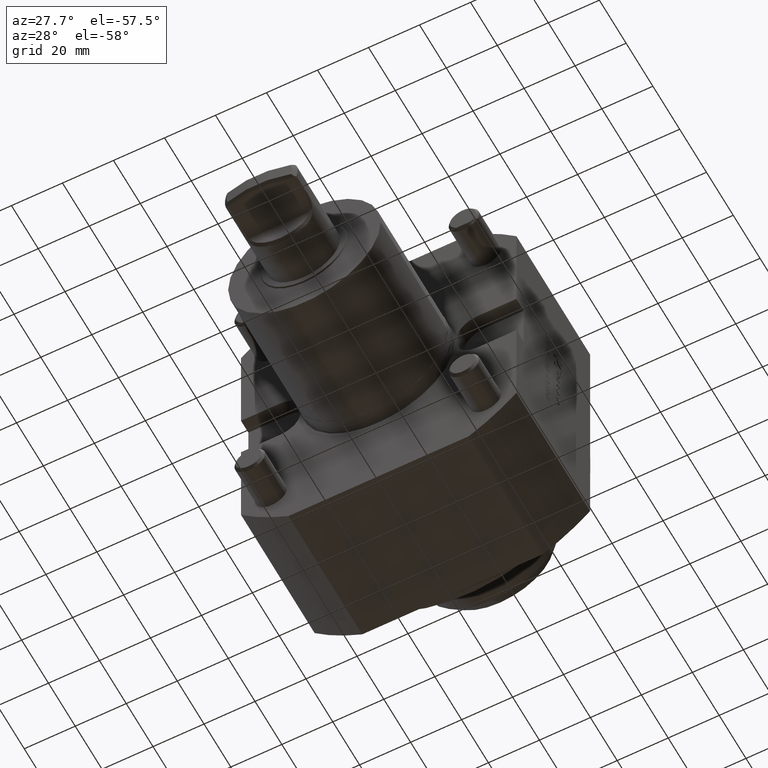
[diagram: clean part render]
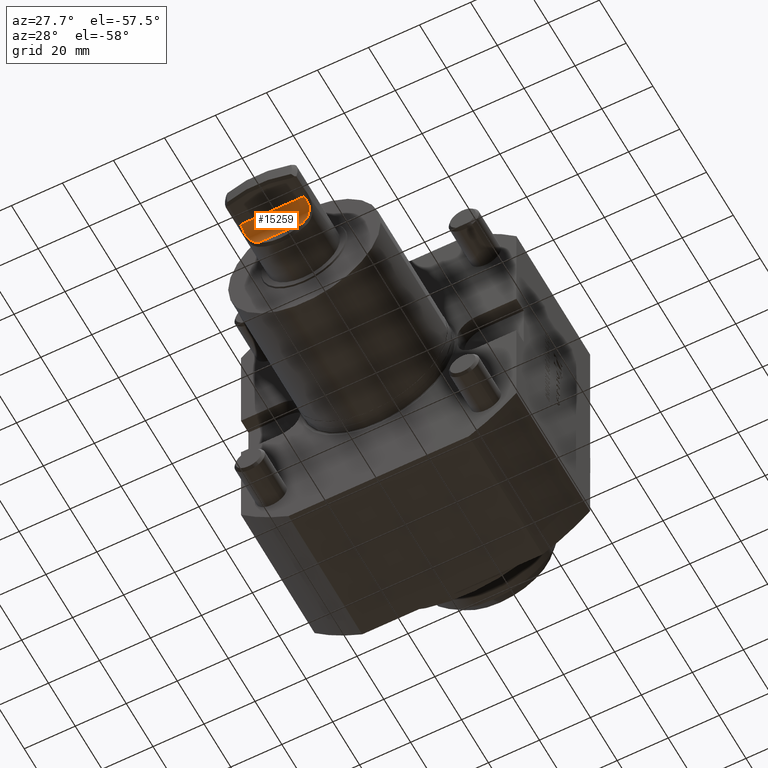
[diagram: same view with one face highlighted and labeled with its STEP entity id]
A machine part, auxiliary view. The second image highlights one B-rep face of the part: STEP entity #15259.
In plain terms, the highlighted cylindrical surface (edge-blend (fillet) strip) has radius 6 mm, axis along (-1, 0, -0).
Its self-contained STEP definition (entity closure, byte-faithful):
#517 = CARTESIAN_POINT ( 'NONE',  ( 10.96966452293996319, -73.88732766394498697, -7.794977636404262888 ) ) ;
#619 = CARTESIAN_POINT ( 'NONE',  ( 9.735458662332453272, -73.53498407962840133, -9.143631829616902351 ) ) ;
#950 = ORIENTED_EDGE ( 'NONE', *, *, #16988, .T. ) ;
#1454 = VERTEX_POINT ( 'NONE', #14440 ) ;
#1478 = DIRECTION ( 'NONE',  ( -1.000000000000000000, 1.223592022496380568E-16, -2.602085213965209409E-17 ) ) ;
#1521 =( BOUNDED_CURVE ( )  B_SPLINE_CURVE ( 3, ( #20821, #6275, #7767, #4694 ),
 .UNSPECIFIED., .F., .F. ) 
 B_SPLINE_CURVE_WITH_KNOTS ( ( 4, 4 ),
 ( 2.598921650024901719, 3.141592653589793116 ),
 .UNSPECIFIED. ) 
 CURVE ( )  GEOMETRIC_REPRESENTATION_ITEM ( )  RATIONAL_B_SPLINE_CURVE ( ( 1.000000000000000000, 0.9756092111258345412, 0.9756092111258345412, 1.000000000000000000 ) ) 
 REPRESENTATION_ITEM ( '' )  );
#1534 = DIRECTION ( 'NONE',  ( -1.000000000000000000, 1.223592022496380568E-16, -2.602085213965209409E-17 ) ) ;
#1873 = EDGE_LOOP ( 'NONE', ( #6935, #18942, #19173, #950, #13720, #12495 ) ) ;
#2304 = CARTESIAN_POINT ( 'NONE',  ( 12.26477245822137618, -75.21262393665990942, -5.722561393912005911 ) ) ;
#3005 = CARTESIAN_POINT ( 'NONE',  ( 12.65199488337115596, -76.40144941275411838, -4.792005813717258533 ) ) ;
#3121 = FACE_OUTER_BOUND ( 'NONE', #1873, .T. ) ;
#3754 = CARTESIAN_POINT ( 'NONE',  ( 12.52416858226863283, -75.88535475117576823, -5.131596445737912404 ) ) ;
#3799 =( BOUNDED_CURVE ( )  B_SPLINE_CURVE ( 3, ( #20847, #6304, #8215, #16279 ),
 .UNSPECIFIED., .F., .F. ) 
 B_SPLINE_CURVE_WITH_KNOTS ( ( 4, 4 ),
 ( 2.598921649952482316, 3.141592653589793116 ),
 .UNSPECIFIED. ) 
 CURVE ( )  GEOMETRIC_REPRESENTATION_ITEM ( )  RATIONAL_B_SPLINE_CURVE ( ( 1.000000000000000000, 0.9756092111193643834, 0.9756092111193643834, 1.000000000000000000 ) ) 
 REPRESENTATION_ITEM ( '' )  );
#3966 = CARTESIAN_POINT ( 'NONE',  ( 12.59399533819296657, -76.13644556352016934, -4.951820675888717993 ) ) ;
#4694 = CARTESIAN_POINT ( 'NONE',  ( 12.50000000000000355, -79.50000000000048317, -3.929999999999999272 ) ) ;
#5275 = CARTESIAN_POINT ( 'NONE',  ( 12.50000000000000355, -79.50000000000048317, -3.929999999999999272 ) ) ;
#5320 = CARTESIAN_POINT ( 'NONE',  ( 12.35955849858278732, -75.42391582076385248, -5.516852063641746184 ) ) ;
#5423 = CARTESIAN_POINT ( 'NONE',  ( -12.65199488382240567, -76.40144941220836472, -4.792005813581075024 ) ) ;
#5987 = CARTESIAN_POINT ( 'NONE',  ( -12.53634790550871081, -75.87305054434749252, -5.110665307041903027 ) ) ;
#6275 = CARTESIAN_POINT ( 'NONE',  ( 12.55193161386062073, -77.34245224775884253, -4.224518817551212280 ) ) ;
#6304 = CARTESIAN_POINT ( 'NONE',  ( -12.55193161387450651, -77.34245224747436964, -4.224518817629830281 ) ) ;
#6935 = ORIENTED_EDGE ( 'NONE', *, *, #19419, .F. ) ;
#7012 = CARTESIAN_POINT ( 'NONE',  ( 10.58040448906659847, -73.73150604599001667, -8.261201405944500920 ) ) ;
#7121 = CARTESIAN_POINT ( 'NONE',  ( 12.04549493963292406, -74.82676599026571296, -6.155742851531728732 ) ) ;
#7370 = CARTESIAN_POINT ( 'NONE',  ( -9.739148830036654658, -73.53493346669230846, -9.140714371243511494 ) ) ;
#7767 = CARTESIAN_POINT ( 'NONE',  ( 12.49999999999998934, -78.40112428979473691, -3.930000000000001936 ) ) ;
#7984 = DIRECTION ( 'NONE',  ( 0.000000000000000000, 0.000000000000000000, 1.000000000000000000 ) ) ;
#8008 = B_SPLINE_CURVE_WITH_KNOTS ( 'NONE', 3,
 ( #17457, #5987, #10672, #18627, #15857, #15466, #14106, #7370, #12280, #9086 ),
 .UNSPECIFIED., .F., .F.,
 ( 4, 2, 2, 2, 4 ),
 ( 2.800119007359849816E-13, 0.001856752242151900236, 0.003713504484023788348, 0.005570256725895676893, 0.007427008967767565438 ),
 .UNSPECIFIED. ) ;
#8215 = CARTESIAN_POINT ( 'NONE',  ( -12.50000000000001243, -78.40112428964442870, -3.929999999999998384 ) ) ;
#9086 = CARTESIAN_POINT ( 'NONE',  ( -8.772548090492286121, -73.50000000000048317, -9.930000000000005045 ) ) ;
#9389 = VERTEX_POINT ( 'NONE', #5423 ) ;
#9539 = EDGE_CURVE ( 'NONE', #17984, #19964, #1521, .T. ) ;
#10071 = CARTESIAN_POINT ( 'NONE',  ( -12.50000000000001776, -79.50000000000048317, -3.930000000000002824 ) ) ;
#10253 = AXIS2_PLACEMENT_3D ( 'NONE', #16255, #1534, #7984 ) ;
#10331 = CARTESIAN_POINT ( 'NONE',  ( 11.63935332783837673, -74.34212888188559987, -6.851914114397563260 ) ) ;
#10672 = CARTESIAN_POINT ( 'NONE',  ( -12.37906444608004186, -75.41504722588574339, -5.496238094993675105 ) ) ;
#11027 = LINE ( 'NONE', #18084, #15100 ) ;
#11509 = DIRECTION ( 'NONE',  ( -1.000000000000000000, 1.223592022496380568E-16, -2.602085213965209409E-17 ) ) ;
#11920 = CARTESIAN_POINT ( 'NONE',  ( 11.48595134253925742, -74.20967289027804270, -7.087320373386665651 ) ) ;
#12042 = CARTESIAN_POINT ( 'NONE',  ( 10.37609877321259688, -73.67175370399084500, -8.487262126902143322 ) ) ;
#12280 = CARTESIAN_POINT ( 'NONE',  ( -9.271373646339206687, -73.50000000000049738, -9.552277411716177724 ) ) ;
#12484 = EDGE_CURVE ( 'NONE', #19964, #19910, #11027, .T. ) ;
#12495 = ORIENTED_EDGE ( 'NONE', *, *, #12484, .T. ) ;
#13177 = B_SPLINE_CURVE_WITH_KNOTS ( 'NONE', 3,
 ( #15126, #16798, #619, #12042, #7012, #517, #13530, #11920, #10331, #18491, #7121, #2304, #5320, #3754, #3966, #18595 ),
 .UNSPECIFIED., .F., .F.,
 ( 4, 2, 2, 2, 2, 2, 2, 4 ),
 ( 0.000000000000000000, 0.001852649545640863054, 0.002778974318461292954, 0.003705299091281720036, 0.004631623864102148852, 0.005557948636922575500, 0.006484273409743003883, 0.007410598182563432265 ),
 .UNSPECIFIED. ) ;
#13530 = CARTESIAN_POINT ( 'NONE',  ( 11.15148804464081067, -73.98240642639129305, -7.558386721260417218 ) ) ;
#13720 = ORIENTED_EDGE ( 'NONE', *, *, #9539, .T. ) ;
#14106 = CARTESIAN_POINT ( 'NONE',  ( -10.60242032487348318, -73.72092542021856332, -8.254503789358764720 ) ) ;
#14440 = CARTESIAN_POINT ( 'NONE',  ( -8.772548090492286121, -73.50000000000048317, -9.930000000000005045 ) ) ;
#15100 = VECTOR ( 'NONE', #11509, 1000.000000000000000 ) ;
#15126 = CARTESIAN_POINT ( 'NONE',  ( 8.772548090492261252, -73.50000000000048317, -9.930000000000005045 ) ) ;
#15259 = ADVANCED_FACE ( 'Defeature completata1_122', ( #3121 ), #16050, .F. ) ;
#15400 = VECTOR ( 'NONE', #1478, 1000.000000000000000 ) ;
#15466 = CARTESIAN_POINT ( 'NONE',  ( -10.98713537160379872, -73.86943922113908911, -7.790744454398427443 ) ) ;
#15589 = CARTESIAN_POINT ( 'NONE',  ( 15.49388420157444379, -73.50000000000048317, -9.930000000000003268 ) ) ;
#15857 = CARTESIAN_POINT ( 'NONE',  ( -11.66170388721465301, -74.33040822808774806, -6.838891802991832414 ) ) ;
#16050 = CYLINDRICAL_SURFACE ( 'NONE', #10253, 6.000000000000004441 ) ;
#16135 = VERTEX_POINT ( 'NONE', #20720 ) ;
#16255 = CARTESIAN_POINT ( 'NONE',  ( 15.49388420157444202, -79.50000000000048317, -9.930000000000003268 ) ) ;
#16279 = CARTESIAN_POINT ( 'NONE',  ( -12.50000000000001776, -79.50000000000048317, -3.930000000000002824 ) ) ;
#16798 = CARTESIAN_POINT ( 'NONE',  ( 9.271514884620456698, -73.50000000000048317, -9.552170462726536471 ) ) ;
#16988 = EDGE_CURVE ( 'NONE', #16135, #17984, #13177, .T. ) ;
#17377 = LINE ( 'NONE', #15589, #15400 ) ;
#17457 = CARTESIAN_POINT ( 'NONE',  ( -12.65199488382240567, -76.40144941220836472, -4.792005813581075024 ) ) ;
#17984 = VERTEX_POINT ( 'NONE', #3005 ) ;
#18084 = CARTESIAN_POINT ( 'NONE',  ( 15.49388420157444202, -79.50000000000048317, -3.930000000000002824 ) ) ;
#18491 = CARTESIAN_POINT ( 'NONE',  ( 11.91967944061348561, -74.65088729436394033, -6.385376866539509422 ) ) ;
#18595 = CARTESIAN_POINT ( 'NONE',  ( 12.65199488337115596, -76.40144941275411838, -4.792005813717258533 ) ) ;
#18627 = CARTESIAN_POINT ( 'NONE',  ( -11.93592935916167797, -74.63267350381384801, -6.372723432659106457 ) ) ;
#18942 = ORIENTED_EDGE ( 'NONE', *, *, #20323, .T. ) ;
#19023 = EDGE_CURVE ( 'NONE', #16135, #1454, #17377, .T. ) ;
#19173 = ORIENTED_EDGE ( 'NONE', *, *, #19023, .F. ) ;
#19419 = EDGE_CURVE ( 'NONE', #9389, #19910, #3799, .T. ) ;
#19910 = VERTEX_POINT ( 'NONE', #10071 ) ;
#19964 = VERTEX_POINT ( 'NONE', #5275 ) ;
#20323 = EDGE_CURVE ( 'NONE', #9389, #1454, #8008, .T. ) ;
#20720 = CARTESIAN_POINT ( 'NONE',  ( 8.772548090492261252, -73.50000000000048317, -9.930000000000005045 ) ) ;
#20821 = CARTESIAN_POINT ( 'NONE',  ( 12.65199488337115596, -76.40144941275411838, -4.792005813717258533 ) ) ;
#20847 = CARTESIAN_POINT ( 'NONE',  ( -12.65199488382240567, -76.40144941220836472, -4.792005813581075024 ) ) ;